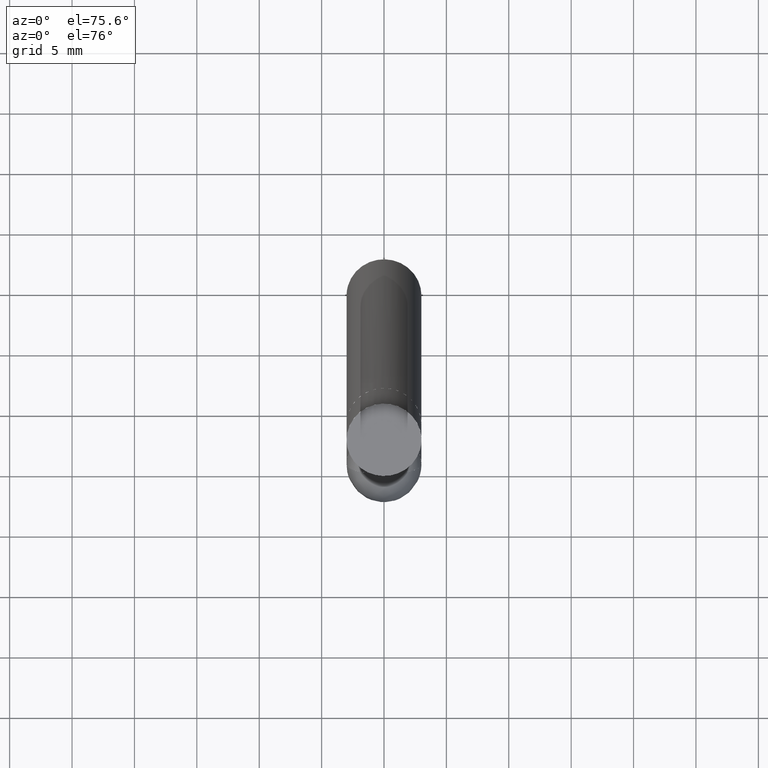
[diagram: clean part render]
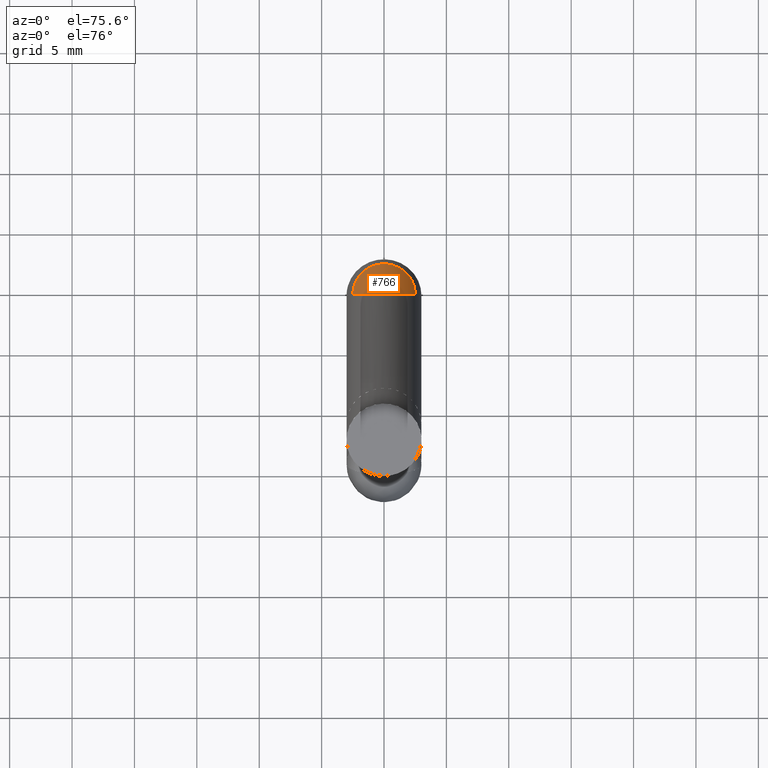
[diagram: same view with one face highlighted and labeled with its STEP entity id]
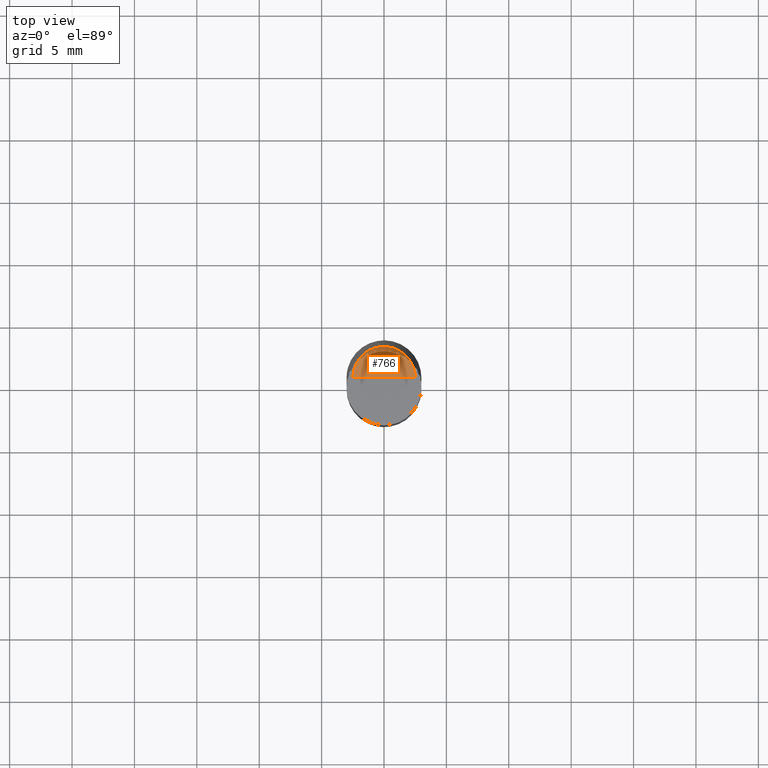
[diagram: same view with one face highlighted and labeled with its STEP entity id]
A machine part, auxiliary view. The second image highlights one B-rep face of the part: STEP entity #766.
A second angle (top view) of the same face is appended — the face is thin or edge-on in the first view.
In plain terms, the highlighted face is a freeform B-spline surface patch.
Its self-contained STEP definition (entity closure, byte-faithful):
#546=CARTESIAN_POINT('',(2.5,0.0,42.0));
#547=CARTESIAN_POINT('',(2.5,2.5,42.0));
#548=CARTESIAN_POINT('',(0.0,2.5,42.0));
#549=CARTESIAN_POINT('',(-2.5,2.5,42.0));
#550=CARTESIAN_POINT('',(-2.5,0.0,42.0));
#551=CARTESIAN_POINT('',(0.0,0.0,42.0));
#751=(
BOUNDED_SURFACE()
B_SPLINE_SURFACE(1,2,(
(#546,#547,#548,#549,#550),
(#551,#551,#551,#551,#551)
), .UNSPECIFIED.,.F.,.F.,.F.)
B_SPLINE_SURFACE_WITH_KNOTS((2,2),(3,2,3),(
0.0,1.0),(
0.0,0.5,1.0), .UNSPECIFIED.)
GEOMETRIC_REPRESENTATION_ITEM()
RATIONAL_B_SPLINE_SURFACE(((1.0,0.707106781187,1.0,0.707106781187,1.0),
(1.0,0.707106781187,1.0,0.707106781187,1.0)
))
REPRESENTATION_ITEM('')
SURFACE()
);
#752=(
BOUNDED_CURVE()
B_SPLINE_CURVE(2,(#550,#549,#548,#547,#546),.UNSPECIFIED.,.F.,.F.)
B_SPLINE_CURVE_WITH_KNOTS((3,2,3),
(0.0,0.5,1.0),.UNSPECIFIED.)
CURVE()
GEOMETRIC_REPRESENTATION_ITEM()
RATIONAL_B_SPLINE_CURVE((1.0,0.707106781187,1.0,0.707106781187,1.0))
REPRESENTATION_ITEM('')
);
#753=(
BOUNDED_CURVE()
B_SPLINE_CURVE(1,(#546,#551),.UNSPECIFIED.,.F.,.F.)
B_SPLINE_CURVE_WITH_KNOTS((2,2),
(0.0,1.0),.UNSPECIFIED.)
CURVE()
GEOMETRIC_REPRESENTATION_ITEM()
RATIONAL_B_SPLINE_CURVE((1.0,1.0))
REPRESENTATION_ITEM('')
);
#754=(
BOUNDED_CURVE()
B_SPLINE_CURVE(1,(#551,#550),.UNSPECIFIED.,.F.,.F.)
B_SPLINE_CURVE_WITH_KNOTS((2,2),
(0.0,1.0),.UNSPECIFIED.)
CURVE()
GEOMETRIC_REPRESENTATION_ITEM()
RATIONAL_B_SPLINE_CURVE((1.0,1.0))
REPRESENTATION_ITEM('')
);
#755=VERTEX_POINT('',#546);
#756=VERTEX_POINT('',#550);
#757=VERTEX_POINT('',#551);
#758=EDGE_CURVE('',#756,#755,#752,.T.);
#759=EDGE_CURVE('',#755,#757,#753,.T.);
#760=EDGE_CURVE('',#757,#756,#754,.T.);
#761=ORIENTED_EDGE('',*,*,#758,.T.);
#762=ORIENTED_EDGE('',*,*,#759,.T.);
#763=ORIENTED_EDGE('',*,*,#760,.T.);
#764=EDGE_LOOP('',(#761,#762,#763));
#765=FACE_OUTER_BOUND('',#764,.T.);
#766=ADVANCED_FACE('',(#765),#751,.T.);